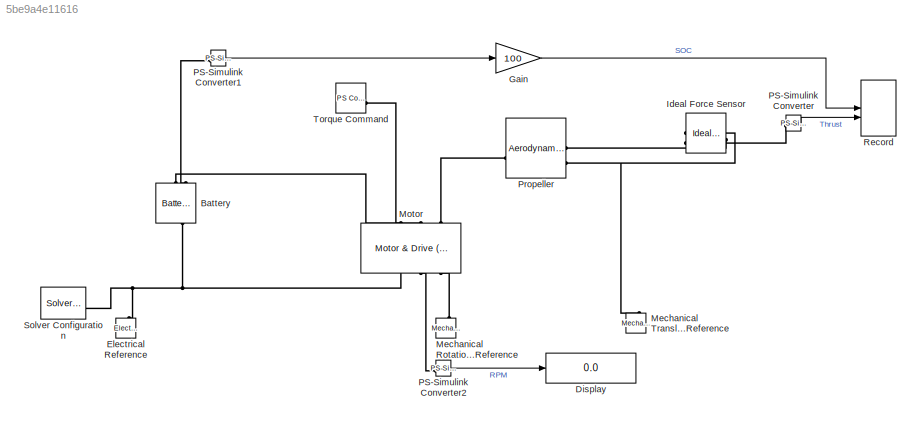
MODEL slx_5be9a4e11616
KIND model
CONFIG AbsTol = auto
CONFIG EnableMultiTasking = off
CONFIG FixedStep = auto
CONFIG MaxStep = auto
CONFIG MinStep = auto
CONFIG RelTol = 1e-3
CONFIG SampleTimeConstraint = Unconstrained
CONFIG SolverName = VariableStepAuto
CONFIG StartTime = 0.0
CONFIG StopTime = 10.0
BLOCK [Reference] Battery  REF=batteryecm_lib/Battery
(Table-Based)
  AttributesFormatString = Panasonic:NCA593446
  LibrarySourceBlock = ee_lib/Sources/Battery\n(Table-Based)
  NameLocation = right
  SourceBlock = batteryecm_lib/Battery\n(Table-Based)
  SourceType = Battery\n(Table-Based)
BLOCK [Display] Display
  Decimation = 1
BLOCK [Reference] Electrical Reference  REF=fl_lib/Electrical/Electrical Elements/Electrical Reference
  NameLocation = right
  SourceBlock = fl_lib/Electrical/Electrical Elements/Electrical Reference
  SourceType = Electrical Reference
BLOCK [Gain] Gain
  Gain = 100
BLOCK [Reference] Ideal Force Sensor  REF=fl_lib/Mechanical/Mechanical Sensors/Ideal Force Sensor
  NameLocation = top
  SourceBlock = fl_lib/Mechanical/Mechanical Sensors/Ideal Force Sensor
  SourceType = Ideal Force Sensor
BLOCK [Reference] Mechanical Rotational Reference  REF=fl_lib/Mechanical/Rotational Elements/Mechanical
Rotational Reference
  NameLocation = right
  SourceBlock = fl_lib/Mechanical/Rotational Elements/Mechanical\nRotational Reference
  SourceType = Mechanical\nRotational Reference
BLOCK [Reference] Mechanical Translational Reference  REF=fl_lib/Mechanical/Translational
Elements/Mechanical
Translational
Reference
  NameLocation = right
  SourceBlock = fl_lib/Mechanical/Translational\nElements/Mechanical\nTranslational\nReference
  SourceType = Mechanical\nTranslational\nReference
BLOCK [Reference] Motor  REF=ee_lib/Electromechanical/Motor & Drive
(System Level)
  NameLocation = right
  SourceBlock = ee_lib/Electromechanical/Motor & Drive\n(System Level)
  SourceType = Motor & Drive\n(System Level)
BLOCK [Reference] PS-Simulink Converter  REF=nesl_utility/PS-Simulink
Converter
  SourceBlock = nesl_utility/PS-Simulink\nConverter
  SourceType = PS-Simulink\nConverter
BLOCK [Reference] PS-Simulink Converter1  REF=nesl_utility/PS-Simulink
Converter
  SourceBlock = nesl_utility/PS-Simulink\nConverter
  SourceType = PS-Simulink\nConverter
BLOCK [Reference] PS-Simulink Converter2  REF=nesl_utility/PS-Simulink
Converter
  SourceBlock = nesl_utility/PS-Simulink\nConverter
  SourceType = PS-Simulink\nConverter
BLOCK [Reference] Propeller  REF=sdl_lib/Engines & Motors/Aerodynamic
Propeller
  SourceBlock = sdl_lib/Engines & Motors/Aerodynamic\nPropeller
  SourceType = Aerodynamic\nPropeller
BLOCK [Record] Record
  FileSettingsInternal = {"entries":[{"content":{"excelSettings":{"content":{},"type":"Streamout.ExcelSettings"}},"type":"Streamout.FileSettingStorage","uuid":""}],"packageUris":["http:\/\/schema.mathworks.com\/mf0\/streamout_blocks\/R2020a"],"version":"1.0"}
  Layout = [1 1]
  SignalsInternal = {"entries":[{"content":{"signals":[{"content":{"blockPath":[],"dimensions":[1],"domain":"","lineColor":"#edb120","lineWidth":2,"plots":[ 1 ],"port":1,"sid":[""],"signalID":1,"signalName":"SOC"},"type":"RecordBlkView.Signal","uuid":""},{"content":{"blockPath":[],"dimensions":[1],"domain":"","lineColor":"#7e2f8e","lineWidth":2,"plots":[ 1 ],"port":2,"sid":[""],"signalID":2,"signalName":"Thrust"},"ty...<+183ch>
  VisualizationBindings = {"sparklinesplugin":{"info":[{"bindingParametersList":[],"subplotID":1}]}}
BLOCK [Reference] Solver Configuration  REF=nesl_utility/Solver
Configuration
  SourceBlock = nesl_utility/Solver\nConfiguration
  SourceType = Solver\nConfiguration
BLOCK [Reference] Torque Command  REF=fl_lib/Physical Signals/Sources/PS Constant
  SourceBlock = fl_lib/Physical Signals/Sources/PS Constant
  SourceType = PS Constant
LINE Gain:1 -> Record:1
LINE PS-Simulink Converter1:1 -> Gain:1
LINE PS-Simulink Converter2:1 -> Display:1
LINE PS-Simulink Converter:1 -> Record:2
PLINE Battery:LConn1 -- Motor:LConn1
PLINE Battery:LConn2 -- PS-Simulink Converter1:LConn1
PNET net1: Battery:RConn1 -- Electrical Reference:LConn1 -- Motor:RConn1 -- Solver Configuration:RConn1
PLINE Ideal Force Sensor:LConn1 -- Propeller:RConn1
PNET net2: Ideal Force Sensor:RConn1 -- Mechanical Translational Reference:LConn1 -- Propeller:RConn2
PLINE Ideal Force Sensor:RConn2 -- PS-Simulink Converter:LConn1
PLINE Mechanical Rotational Reference:LConn1 -- Motor:RConn3
PLINE Motor:LConn2 -- Torque Command:RConn1
PLINE Motor:LConn3 -- Propeller:LConn1
PLINE Motor:RConn2 -- PS-Simulink Converter2:LConn1
note: PNET lines group multi-terminal physical nets as a canonical sorted terminal list (undirected conserving connections); 2-terminal nets keep the pairwise PLINE form
